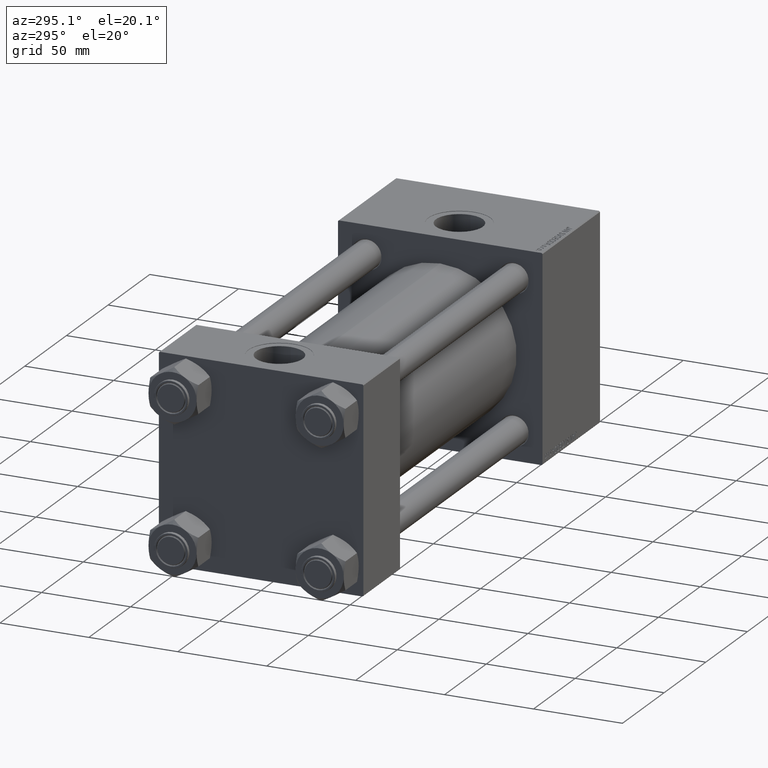
[diagram: clean part render]
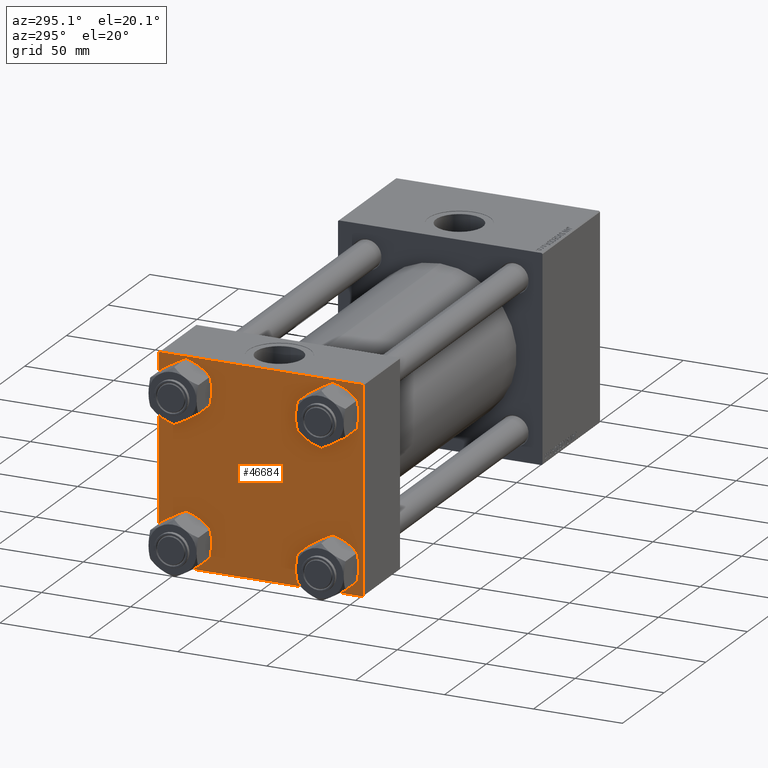
[diagram: same view with one face highlighted and labeled with its STEP entity id]
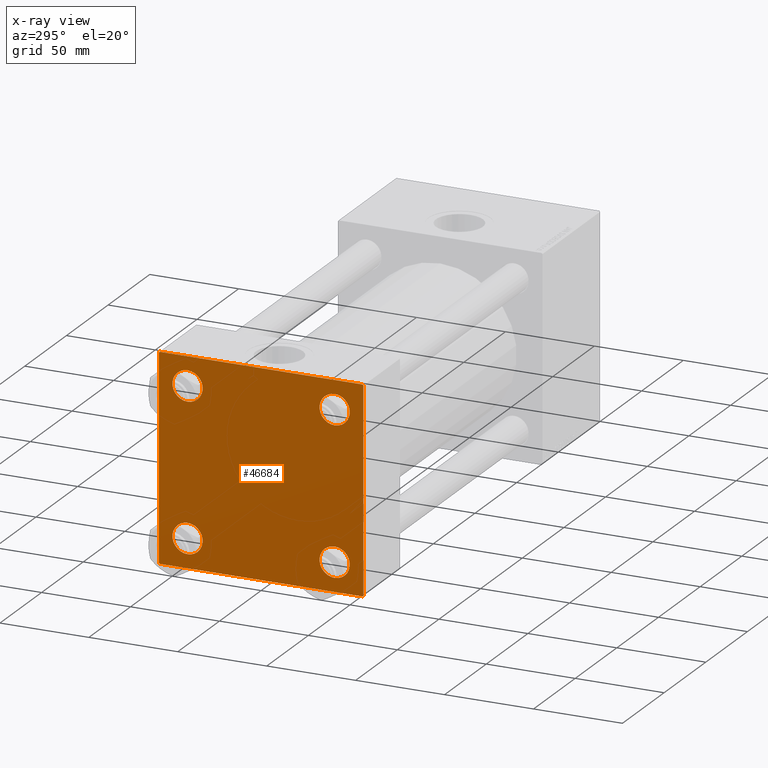
[diagram: x-ray of the same camera — body ghosted, the highlighted face saturated]
A machine part, auxiliary view. The second image highlights one B-rep face of the part: STEP entity #46684.
The next image is the same camera in x-ray: the body ghosted, the highlighted face saturated — about 0% of this face is hidden behind the body in this view.
In plain terms, the highlighted planar face has unit normal (-1, 0, 0).
Its self-contained STEP definition (entity closure, byte-faithful):
#23 = DIRECTION ( 'NONE',  ( 0.000000000000000000, 0.000000000000000000, 1.000000000000000000 ) ) ;
#326 = LINE ( 'NONE', #16242, #27777 ) ;
#481 = EDGE_CURVE ( 'NONE', #10162, #30202, #29709, .T. ) ;
#561 = CARTESIAN_POINT ( 'NONE',  ( 0.000000000000000000, 57.49999999999999289, 57.50000000000000711 ) ) ;
#690 = CIRCLE ( 'NONE', #49910, 8.499999999999992895 ) ;
#1034 = CARTESIAN_POINT ( 'NONE',  ( 0.000000000000000000, -57.50000000000000711, 57.00000000000000711 ) ) ;
#1361 = AXIS2_PLACEMENT_3D ( 'NONE', #45328, #17833, #40998 ) ;
#1487 = DIRECTION ( 'NONE',  ( 0.000000000000000000, 0.000000000000000000, 1.000000000000000000 ) ) ;
#2172 = VERTEX_POINT ( 'NONE', #46106 ) ;
#2601 = DIRECTION ( 'NONE',  ( 0.000000000000000000, 0.000000000000000000, 1.000000000000000000 ) ) ;
#3060 = VECTOR ( 'NONE', #28514, 1000.000000000000000 ) ;
#3399 = CARTESIAN_POINT ( 'NONE',  ( 0.000000000000000000, 57.00000000000000711, 57.50000000000000711 ) ) ;
#3506 = CIRCLE ( 'NONE', #47936, 8.499999999999992895 ) ;
#3565 = FACE_BOUND ( 'NONE', #30258, .T. ) ;
#3819 = PLANE ( 'NONE',  #31462 ) ;
#4073 = FACE_OUTER_BOUND ( 'NONE', #26994, .T. ) ;
#4315 = ORIENTED_EDGE ( 'NONE', *, *, #20577, .T. ) ;
#4811 = DIRECTION ( 'NONE',  ( 0.000000000000000000, 0.000000000000000000, -1.000000000000000000 ) ) ;
#5338 = DIRECTION ( 'NONE',  ( 1.000000000000000000, -0.000000000000000000, 0.000000000000000000 ) ) ;
#6000 = DIRECTION ( 'NONE',  ( 0.000000000000000000, -0.7071067811865474617, 0.7071067811865474617 ) ) ;
#6242 = VERTEX_POINT ( 'NONE', #49826 ) ;
#6259 = DIRECTION ( 'NONE',  ( 0.000000000000000000, 0.000000000000000000, 1.000000000000000000 ) ) ;
#7006 = CARTESIAN_POINT ( 'NONE',  ( 0.000000000000000000, -57.25000000000000711, -57.25000000000000711 ) ) ;
#7614 = ORIENTED_EDGE ( 'NONE', *, *, #48632, .T. ) ;
#7751 = VERTEX_POINT ( 'NONE', #19654 ) ;
#8366 = AXIS2_PLACEMENT_3D ( 'NONE', #27825, #36038, #47103 ) ;
#8784 = VERTEX_POINT ( 'NONE', #10738 ) ;
#9032 = VECTOR ( 'NONE', #37249, 1000.000000000000114 ) ;
#9088 = EDGE_CURVE ( 'NONE', #46615, #18550, #36678, .T. ) ;
#9191 = ORIENTED_EDGE ( 'NONE', *, *, #44197, .T. ) ;
#9650 = EDGE_LOOP ( 'NONE', ( #36062, #17741 ) ) ;
#10162 = VERTEX_POINT ( 'NONE', #26628 ) ;
#10347 = LINE ( 'NONE', #7006, #29180 ) ;
#10354 = CARTESIAN_POINT ( 'NONE',  ( 0.000000000000000000, 41.34999999999999432, -49.85000000000000142 ) ) ;
#10738 = CARTESIAN_POINT ( 'NONE',  ( 0.000000000000000000, 41.34999999999999432, 32.85000000000000853 ) ) ;
#11278 = FACE_BOUND ( 'NONE', #31369, .T. ) ;
#11279 = CIRCLE ( 'NONE', #40025, 8.499999999999992895 ) ;
#11335 = DIRECTION ( 'NONE',  ( 1.000000000000000000, -0.000000000000000000, 0.000000000000000000 ) ) ;
#11579 = DIRECTION ( 'NONE',  ( 1.000000000000000000, -0.000000000000000000, 0.000000000000000000 ) ) ;
#11784 = FACE_BOUND ( 'NONE', #9650, .T. ) ;
#11948 = AXIS2_PLACEMENT_3D ( 'NONE', #34722, #11335, #23 ) ;
#12189 = ORIENTED_EDGE ( 'NONE', *, *, #20977, .T. ) ;
#13014 = EDGE_LOOP ( 'NONE', ( #46562, #12189 ) ) ;
#13028 = EDGE_CURVE ( 'NONE', #20650, #8784, #49675, .T. ) ;
#13336 = VECTOR ( 'NONE', #38715, 1000.000000000000114 ) ;
#13631 = EDGE_CURVE ( 'NONE', #48541, #41136, #46435, .T. ) ;
#14105 = CARTESIAN_POINT ( 'NONE',  ( 0.000000000000000000, 41.34999999999999432, -41.35000000000000142 ) ) ;
#15492 = CARTESIAN_POINT ( 'NONE',  ( 0.000000000000000000, 41.34999999999999432, -41.35000000000000142 ) ) ;
#15888 = VERTEX_POINT ( 'NONE', #27040 ) ;
#16242 = CARTESIAN_POINT ( 'NONE',  ( 0.000000000000000000, 57.49999999999999289, -57.49999999999999289 ) ) ;
#16719 = VERTEX_POINT ( 'NONE', #3399 ) ;
#16945 = CIRCLE ( 'NONE', #1361, 8.499999999999992895 ) ;
#17053 = LINE ( 'NONE', #32472, #18809 ) ;
#17066 = CARTESIAN_POINT ( 'NONE',  ( 0.000000000000000000, -41.34999999999998721, 41.35000000000000853 ) ) ;
#17741 = ORIENTED_EDGE ( 'NONE', *, *, #481, .T. ) ;
#17833 = DIRECTION ( 'NONE',  ( 1.000000000000000000, -0.000000000000000000, 0.000000000000000000 ) ) ;
#18409 = LINE ( 'NONE', #22520, #13336 ) ;
#18550 = VERTEX_POINT ( 'NONE', #24895 ) ;
#18809 = VECTOR ( 'NONE', #24770, 1000.000000000000114 ) ;
#19079 = ORIENTED_EDGE ( 'NONE', *, *, #20212, .F. ) ;
#19491 = DIRECTION ( 'NONE',  ( -1.000000000000000000, 0.000000000000000000, -0.000000000000000000 ) ) ;
#19654 = CARTESIAN_POINT ( 'NONE',  ( 0.000000000000000000, 41.34999999999999432, -32.85000000000000853 ) ) ;
#19662 = CARTESIAN_POINT ( 'NONE',  ( 0.000000000000000000, 41.34999999999999432, 49.85000000000000142 ) ) ;
#20212 = EDGE_CURVE ( 'NONE', #16719, #36691, #40150, .T. ) ;
#20351 = DIRECTION ( 'NONE',  ( 0.000000000000000000, -1.000000000000000000, -1.206764157201257045E-16 ) ) ;
#20577 = EDGE_CURVE ( 'NONE', #40469, #6242, #26097, .T. ) ;
#20650 = VERTEX_POINT ( 'NONE', #19662 ) ;
#20654 = CARTESIAN_POINT ( 'NONE',  ( 0.000000000000000000, 57.49999999999999289, 57.00000000000003553 ) ) ;
#20977 = EDGE_CURVE ( 'NONE', #41136, #48541, #46536, .T. ) ;
#21560 = CARTESIAN_POINT ( 'NONE',  ( -0.000000000000000000, -57.25000000000081712, 57.24999999999922551 ) ) ;
#21803 = AXIS2_PLACEMENT_3D ( 'NONE', #40559, #5338, #1487 ) ;
#22013 = ORIENTED_EDGE ( 'NONE', *, *, #22165, .T. ) ;
#22165 = EDGE_CURVE ( 'NONE', #8784, #20650, #11279, .T. ) ;
#22520 = CARTESIAN_POINT ( 'NONE',  ( 0.000000000000000000, 57.24999999999922551, 57.25000000000081712 ) ) ;
#23771 = EDGE_CURVE ( 'NONE', #2172, #18550, #10347, .T. ) ;
#24219 = DIRECTION ( 'NONE',  ( 0.000000000000000000, -1.000000000000000000, -1.206764157201257045E-16 ) ) ;
#24380 = AXIS2_PLACEMENT_3D ( 'NONE', #17066, #48420, #6259 ) ;
#24654 = CARTESIAN_POINT ( 'NONE',  ( 0.000000000000000000, 57.49999999999999289, 57.50000000000000711 ) ) ;
#24770 = DIRECTION ( 'NONE',  ( -0.000000000000000000, -0.7071067811865376918, -0.7071067811865573427 ) ) ;
#24895 = CARTESIAN_POINT ( 'NONE',  ( 0.000000000000000000, -57.50000000000000711, -57.00000000000000711 ) ) ;
#25366 = CARTESIAN_POINT ( 'NONE',  ( 0.000000000000000000, -41.34999999999998721, -32.85000000000001563 ) ) ;
#26097 = LINE ( 'NONE', #24654, #3060 ) ;
#26189 = DIRECTION ( 'NONE',  ( 1.000000000000000000, -0.000000000000000000, 0.000000000000000000 ) ) ;
#26250 = EDGE_CURVE ( 'NONE', #30202, #10162, #16945, .T. ) ;
#26628 = CARTESIAN_POINT ( 'NONE',  ( 0.000000000000000000, -41.34999999999998721, -49.85000000000000853 ) ) ;
#26994 = EDGE_LOOP ( 'NONE', ( #4315, #28453, #35266, #33672, #27468, #48917, #19079, #9191 ) ) ;
#27040 = CARTESIAN_POINT ( 'NONE',  ( 0.000000000000000000, 57.00000000000002132, -57.49999999999999289 ) ) ;
#27441 = VECTOR ( 'NONE', #4811, 1000.000000000000000 ) ;
#27468 = ORIENTED_EDGE ( 'NONE', *, *, #9088, .F. ) ;
#27777 = VECTOR ( 'NONE', #24219, 1000.000000000000000 ) ;
#27825 = CARTESIAN_POINT ( 'NONE',  ( 0.000000000000000000, -41.34999999999998721, -41.35000000000000853 ) ) ;
#28453 = ORIENTED_EDGE ( 'NONE', *, *, #36642, .T. ) ;
#28514 = DIRECTION ( 'NONE',  ( 0.000000000000000000, 0.000000000000000000, -1.000000000000000000 ) ) ;
#29180 = VECTOR ( 'NONE', #6000, 1000.000000000000114 ) ;
#29292 = VECTOR ( 'NONE', #20351, 1000.000000000000000 ) ;
#29709 = CIRCLE ( 'NONE', #8366, 8.499999999999992895 ) ;
#30202 = VERTEX_POINT ( 'NONE', #25366 ) ;
#30258 = EDGE_LOOP ( 'NONE', ( #49895, #22013 ) ) ;
#31245 = EDGE_CURVE ( 'NONE', #7751, #33109, #690, .T. ) ;
#31297 = EDGE_CURVE ( 'NONE', #15888, #2172, #326, .T. ) ;
#31369 = EDGE_LOOP ( 'NONE', ( #36877, #7614 ) ) ;
#31462 = AXIS2_PLACEMENT_3D ( 'NONE', #38524, #19491, #35174 ) ;
#32472 = CARTESIAN_POINT ( 'NONE',  ( 0.000000000000000000, 57.25000000000081712, -57.24999999999922551 ) ) ;
#33109 = VERTEX_POINT ( 'NONE', #10354 ) ;
#33373 = LINE ( 'NONE', #21560, #9032 ) ;
#33672 = ORIENTED_EDGE ( 'NONE', *, *, #23771, .T. ) ;
#34722 = CARTESIAN_POINT ( 'NONE',  ( 0.000000000000000000, 41.34999999999999432, 41.35000000000000142 ) ) ;
#34815 = CARTESIAN_POINT ( 'NONE',  ( 0.000000000000000000, -41.34999999999998721, 32.85000000000001563 ) ) ;
#35174 = DIRECTION ( 'NONE',  ( -0.000000000000000000, 0.000000000000000000, 1.000000000000000000 ) ) ;
#35266 = ORIENTED_EDGE ( 'NONE', *, *, #31297, .T. ) ;
#35910 = CARTESIAN_POINT ( 'NONE',  ( 0.000000000000000000, -57.50000000000000711, 57.49999999999999289 ) ) ;
#36038 = DIRECTION ( 'NONE',  ( 1.000000000000000000, -0.000000000000000000, 0.000000000000000000 ) ) ;
#36062 = ORIENTED_EDGE ( 'NONE', *, *, #26250, .T. ) ;
#36642 = EDGE_CURVE ( 'NONE', #6242, #15888, #17053, .T. ) ;
#36678 = LINE ( 'NONE', #35910, #27441 ) ;
#36691 = VERTEX_POINT ( 'NONE', #40715 ) ;
#36877 = ORIENTED_EDGE ( 'NONE', *, *, #31245, .T. ) ;
#37249 = DIRECTION ( 'NONE',  ( -0.000000000000000000, 0.7071067811865376918, 0.7071067811865573427 ) ) ;
#38524 = CARTESIAN_POINT ( 'NONE',  ( 0.000000000000000000, 0.000000000000000000, 0.000000000000000000 ) ) ;
#38715 = DIRECTION ( 'NONE',  ( 0.000000000000000000, 0.7071067811865573427, -0.7071067811865376918 ) ) ;
#38776 = FACE_BOUND ( 'NONE', #13014, .T. ) ;
#39043 = EDGE_CURVE ( 'NONE', #46615, #36691, #33373, .T. ) ;
#40025 = AXIS2_PLACEMENT_3D ( 'NONE', #42171, #11579, #2601 ) ;
#40150 = LINE ( 'NONE', #561, #29292 ) ;
#40469 = VERTEX_POINT ( 'NONE', #20654 ) ;
#40559 = CARTESIAN_POINT ( 'NONE',  ( 0.000000000000000000, -41.34999999999998721, 41.35000000000000853 ) ) ;
#40715 = CARTESIAN_POINT ( 'NONE',  ( 0.000000000000000000, -57.00000000000003553, 57.49999999999999289 ) ) ;
#40998 = DIRECTION ( 'NONE',  ( 0.000000000000000000, 0.000000000000000000, 1.000000000000000000 ) ) ;
#41136 = VERTEX_POINT ( 'NONE', #34815 ) ;
#41880 = DIRECTION ( 'NONE',  ( 0.000000000000000000, 0.000000000000000000, 1.000000000000000000 ) ) ;
#42171 = CARTESIAN_POINT ( 'NONE',  ( 0.000000000000000000, 41.34999999999999432, 41.35000000000000142 ) ) ;
#43001 = DIRECTION ( 'NONE',  ( 0.000000000000000000, 0.000000000000000000, 1.000000000000000000 ) ) ;
#43506 = DIRECTION ( 'NONE',  ( 1.000000000000000000, -0.000000000000000000, 0.000000000000000000 ) ) ;
#44197 = EDGE_CURVE ( 'NONE', #16719, #40469, #18409, .T. ) ;
#45328 = CARTESIAN_POINT ( 'NONE',  ( 0.000000000000000000, -41.34999999999998721, -41.35000000000000853 ) ) ;
#46106 = CARTESIAN_POINT ( 'NONE',  ( 0.000000000000000000, -57.00000000000000711, -57.50000000000000711 ) ) ;
#46435 = CIRCLE ( 'NONE', #21803, 8.499999999999992895 ) ;
#46536 = CIRCLE ( 'NONE', #24380, 8.499999999999992895 ) ;
#46562 = ORIENTED_EDGE ( 'NONE', *, *, #13631, .T. ) ;
#46615 = VERTEX_POINT ( 'NONE', #1034 ) ;
#46684 = ADVANCED_FACE ( 'NONE', ( #38776, #11784, #11278, #3565, #4073 ), #3819, .T. ) ;
#47103 = DIRECTION ( 'NONE',  ( 0.000000000000000000, 0.000000000000000000, 1.000000000000000000 ) ) ;
#47936 = AXIS2_PLACEMENT_3D ( 'NONE', #14105, #26189, #41880 ) ;
#48420 = DIRECTION ( 'NONE',  ( 1.000000000000000000, -0.000000000000000000, 0.000000000000000000 ) ) ;
#48541 = VERTEX_POINT ( 'NONE', #50643 ) ;
#48632 = EDGE_CURVE ( 'NONE', #33109, #7751, #3506, .T. ) ;
#48917 = ORIENTED_EDGE ( 'NONE', *, *, #39043, .T. ) ;
#49675 = CIRCLE ( 'NONE', #11948, 8.499999999999992895 ) ;
#49826 = CARTESIAN_POINT ( 'NONE',  ( 0.000000000000000000, 57.49999999999999289, -57.00000000000000711 ) ) ;
#49895 = ORIENTED_EDGE ( 'NONE', *, *, #13028, .T. ) ;
#49910 = AXIS2_PLACEMENT_3D ( 'NONE', #15492, #43506, #43001 ) ;
#50643 = CARTESIAN_POINT ( 'NONE',  ( 0.000000000000000000, -41.34999999999998721, 49.85000000000000853 ) ) ;